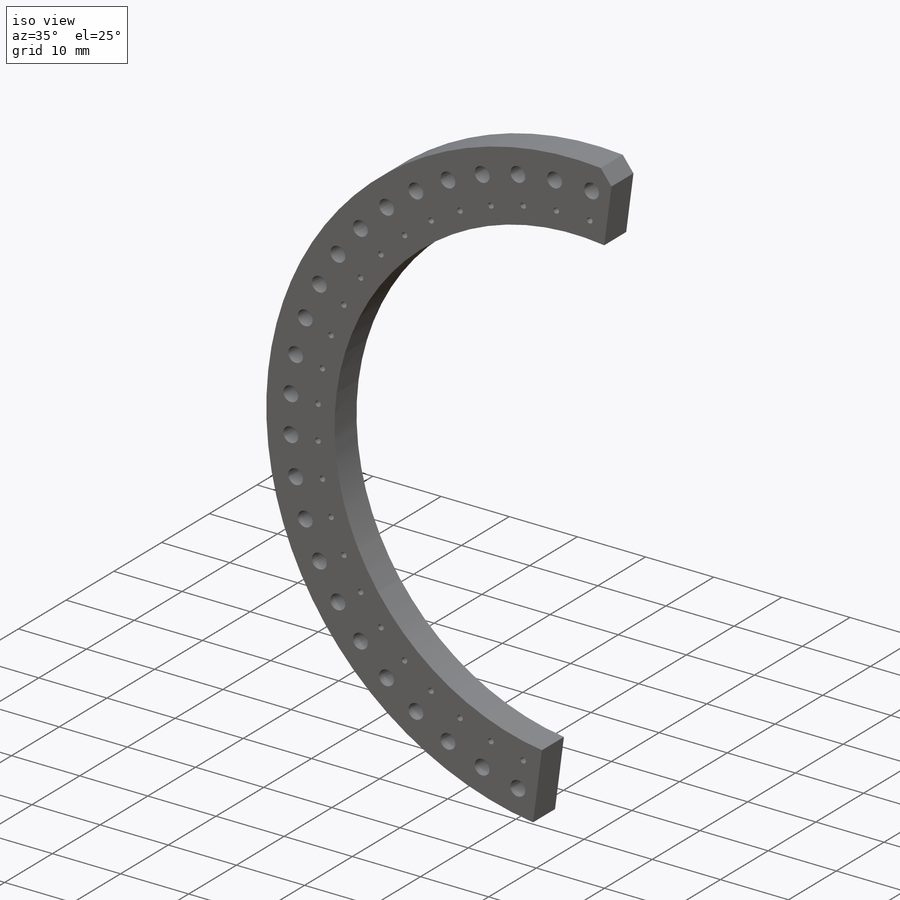
[diagram: iso view]
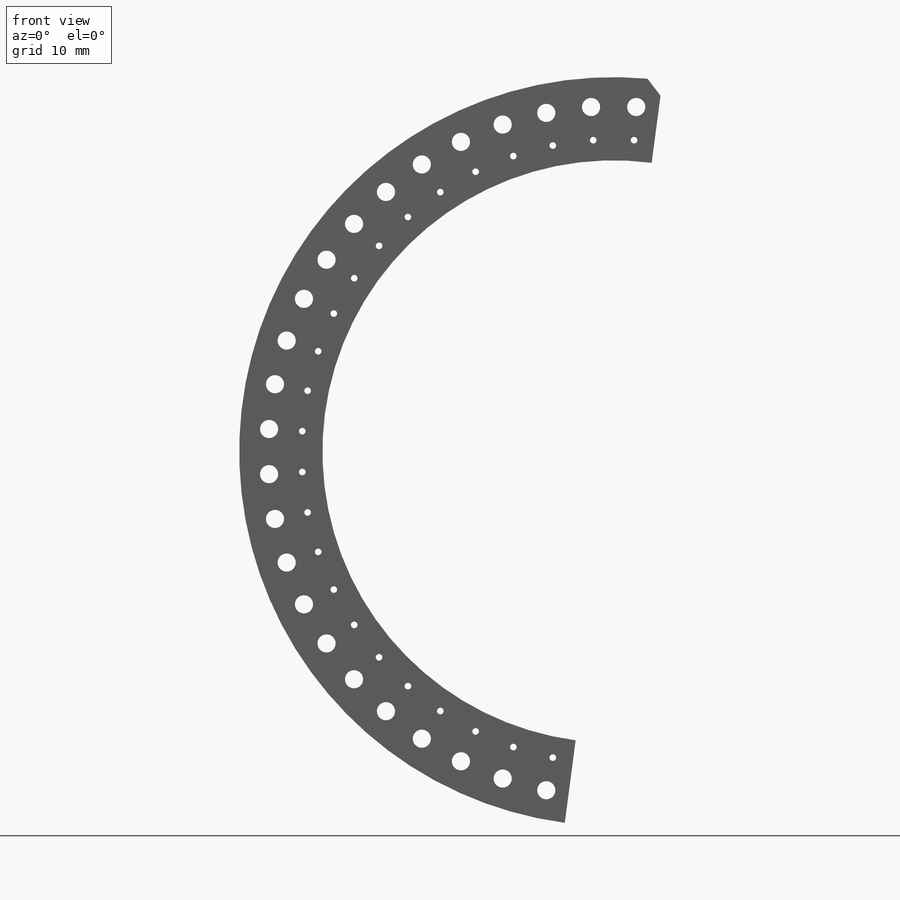
[diagram: front view]
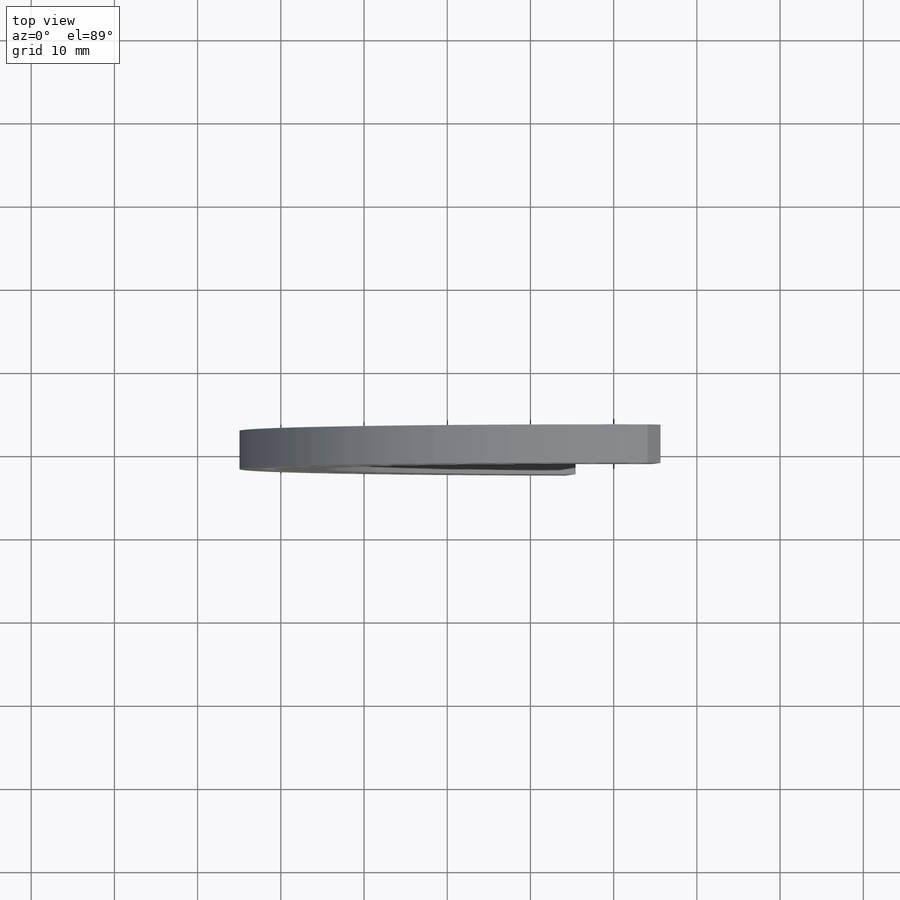
[diagram: top view]
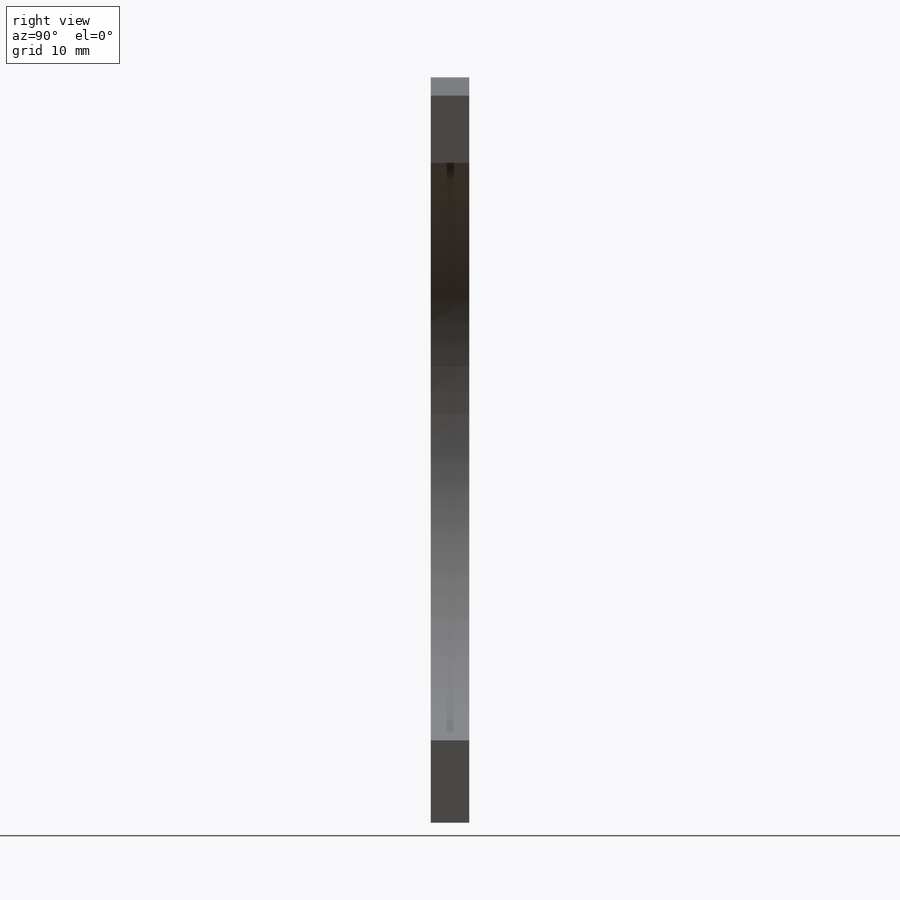
[diagram: right view]
SOLIDWORKS PART (.sldprt)
format: sldprt  version: not decoded by parser v0  size: 7,188,992 bytes
history: native  units: mm
features: sketch x6, plane x3, extrude x3, cut_extrude x3, fillet x3, material x1, pattern_circular x1 + 2 further entries (+12 scaffold rows collapsed)
feature tree (34):
  scaffold x12  (default folders/planes/origin — collapsed)
  material  "Material <not specified>"
  plane  "Plane1"
  plane  "Plane2"
  plane  "Plane3"
  "Axis2"
  "Axis3"
  sketch  "Sketch7"  dims[c1.D1=35.0mm c1.D2=45.0mm c1.D3=110.0mm c2.D3=4.0deg c2.D4=~8.885929mm c3.D4=7.5deg]
  extrude  "Extrude5"  Depth=4.6125mm
  sketch  "Sketch31"  dims[c1.D3=~0.79375mm c1.D4=2.1844mm c1.D5=37.5mm c1.D6=41.5mm c1.D2=~0.79375mm c2.D3=2.1844mm c2.D1=~45.601781mm c3.D1=11.25deg c3.D2=~45.504144mm c4.D2=7.5deg]
  cut_extrude  "Cut-Extrude4"  [1 undecoded]
  pattern_circular  "CirPattern1"  Count=24 Angle=7.5deg
  sketch  "Sketch32"  dims[c1.D1=~1.843851mm c2.D1=45.0deg c2.D2=~1.859761mm]
  cut_extrude  "Cut-Extrude5"  [1 undecoded]
  sketch  "Sketch33"  dims[c1.D1=157.925mm c1.D2=10.0mm c1.D3=~36.946853mm c2.D3=~95.178469deg]
  extrude  "Boss-Extrude1"  [1 undecoded]
  fillet  "Fillet1"  Radius=1mm
  sketch  "Sketch34"  dims[D1=2.8448mm D2=100.0mm]
  cut_extrude  "Cut-Extrude6"  [1 undecoded]
  sketch  "Sketch35"
  extrude  "Boss-Extrude2"  [1 undecoded]
  fillet  "Fillet2"  Radius=1mm
  fillet  "Fillet3"  Radius=1mm
decode coverage: 10 of 16 modeling features carry decoded parameters; 2 rows unclassified (native names shown)
note: ~ marks probable driven/reference dimensions
note: 5 parameter values undecoded
summary: no parameter record found for 5 features
note: suppression state not decoded; provenance and decode notes live in map.json
